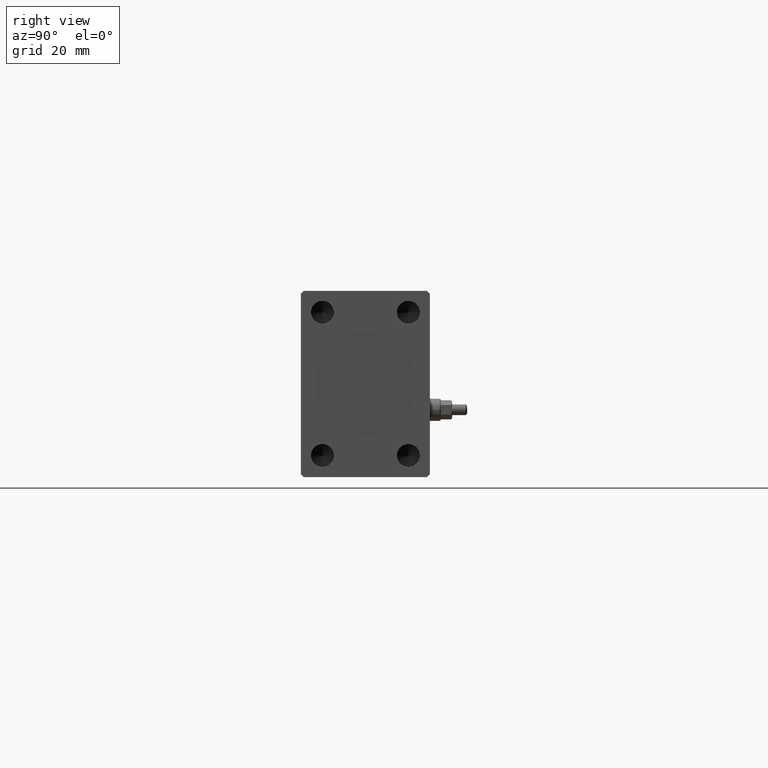
[diagram: clean part render]
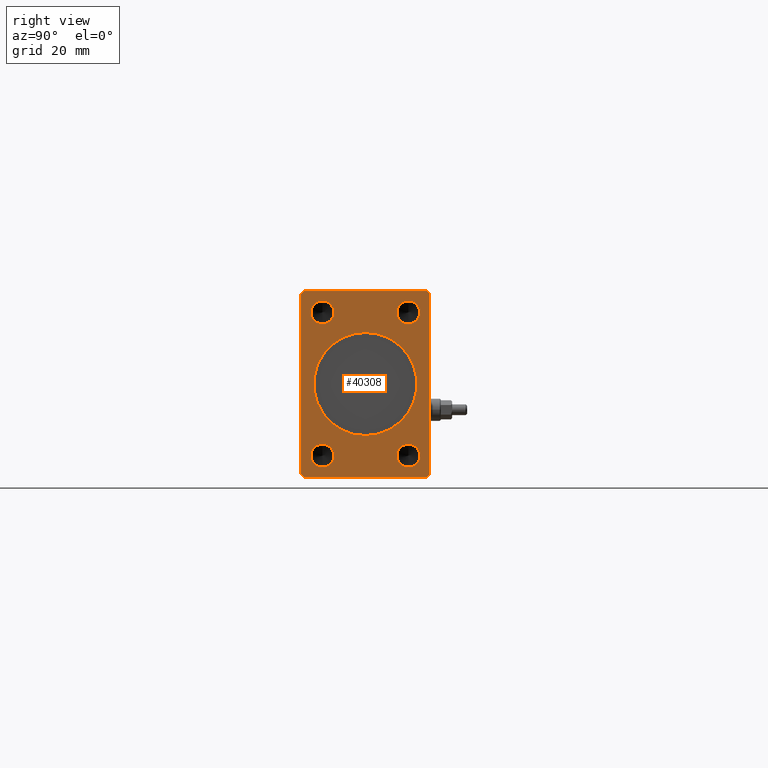
[diagram: same view with one face highlighted and labeled with its STEP entity id]
A machine part, right view. The second image highlights one B-rep face of the part: STEP entity #40308.
In plain terms, the highlighted planar face has unit normal (1, 0, 0).
Its self-contained STEP definition (entity closure, byte-faithful):
#28 = LINE ( 'NONE', #16927, #16991 ) ;
#1206 = CARTESIAN_POINT ( 'NONE',  ( 233.0000000000000000, 15.00000000000000355, -20.99999999999999289 ) ) ;
#1550 = CARTESIAN_POINT ( 'NONE',  ( 233.0000000000000000, -21.50000000000001776, -32.50000000000000711 ) ) ;
#1623 = CARTESIAN_POINT ( 'NONE',  ( 233.0000000000000000, 21.49999999999999645, 32.50000000000000000 ) ) ;
#1626 = CARTESIAN_POINT ( 'NONE',  ( 233.0000000000000000, -21.50000000000001421, 32.50000000000000000 ) ) ;
#1641 = EDGE_CURVE ( 'NONE', #15261, #9431, #38901, .T. ) ;
#2005 = VERTEX_POINT ( 'NONE', #2988 ) ;
#2160 = DIRECTION ( 'NONE',  ( 0.000000000000000000, 0.000000000000000000, -1.000000000000000000 ) ) ;
#2257 = EDGE_CURVE ( 'NONE', #3025, #17758, #5117, .T. ) ;
#2387 = FACE_BOUND ( 'NONE', #38058, .T. ) ;
#2627 = DIRECTION ( 'NONE',  ( 1.000000000000000000, -0.000000000000000000, -0.000000000000000000 ) ) ;
#2932 = ORIENTED_EDGE ( 'NONE', *, *, #25602, .F. ) ;
#2988 = CARTESIAN_POINT ( 'NONE',  ( 233.0000000000000000, -14.99999999999999645, 28.99999999999999645 ) ) ;
#3005 = VECTOR ( 'NONE', #36068, 1000.000000000000000 ) ;
#3025 = VERTEX_POINT ( 'NONE', #8953 ) ;
#3269 = VERTEX_POINT ( 'NONE', #11868 ) ;
#3321 = EDGE_LOOP ( 'NONE', ( #29666, #33351, #33334, #18006, #14334, #45018, #23062, #37845 ) ) ;
#4527 = CARTESIAN_POINT ( 'NONE',  ( 233.0000000000000000, 2.204364238465235428E-15, 18.00000000000000000 ) ) ;
#4909 = DIRECTION ( 'NONE',  ( 1.000000000000000000, -0.000000000000000000, -0.000000000000000000 ) ) ;
#4951 = EDGE_CURVE ( 'NONE', #3269, #29645, #32177, .T. ) ;
#5117 = CIRCLE ( 'NONE', #30674, 4.000000000000000000 ) ;
#5427 = EDGE_CURVE ( 'NONE', #8475, #37578, #30759, .T. ) ;
#5719 = CIRCLE ( 'NONE', #10819, 4.000000000000000000 ) ;
#5837 = DIRECTION ( 'NONE',  ( 0.000000000000000000, 0.000000000000000000, -1.000000000000000000 ) ) ;
#6002 = AXIS2_PLACEMENT_3D ( 'NONE', #20202, #9227, #31153 ) ;
#6252 = EDGE_CURVE ( 'NONE', #16989, #17070, #43915, .T. ) ;
#6715 = EDGE_LOOP ( 'NONE', ( #23156, #2932 ) ) ;
#6917 = EDGE_LOOP ( 'NONE', ( #27243, #33053 ) ) ;
#7856 = EDGE_LOOP ( 'NONE', ( #19400, #31046 ) ) ;
#7930 = DIRECTION ( 'NONE',  ( 0.000000000000000000, 0.000000000000000000, -1.000000000000000000 ) ) ;
#8049 = DIRECTION ( 'NONE',  ( 0.000000000000000000, 0.000000000000000000, -1.000000000000000000 ) ) ;
#8397 = EDGE_CURVE ( 'NONE', #43526, #25767, #44941, .T. ) ;
#8475 = VERTEX_POINT ( 'NONE', #31434 ) ;
#8581 = EDGE_CURVE ( 'NONE', #41480, #13147, #11820, .T. ) ;
#8615 = EDGE_CURVE ( 'NONE', #10043, #17095, #13110, .T. ) ;
#8731 = EDGE_CURVE ( 'NONE', #15546, #2005, #42507, .T. ) ;
#8953 = CARTESIAN_POINT ( 'NONE',  ( 233.0000000000000000, 15.00000000000000355, 29.00000000000000000 ) ) ;
#9227 = DIRECTION ( 'NONE',  ( 1.000000000000000000, -0.000000000000000000, -0.000000000000000000 ) ) ;
#9431 = VERTEX_POINT ( 'NONE', #42855 ) ;
#9455 = FACE_OUTER_BOUND ( 'NONE', #3321, .T. ) ;
#9490 = ORIENTED_EDGE ( 'NONE', *, *, #37399, .F. ) ;
#9532 = CARTESIAN_POINT ( 'NONE',  ( 233.0000000000000000, 15.00000000000000355, -28.99999999999999289 ) ) ;
#9681 = FACE_BOUND ( 'NONE', #6715, .T. ) ;
#10043 = VERTEX_POINT ( 'NONE', #37908 ) ;
#10182 = DIRECTION ( 'NONE',  ( 0.000000000000000000, 0.000000000000000000, 1.000000000000000000 ) ) ;
#10202 = EDGE_CURVE ( 'NONE', #17758, #3025, #26382, .T. ) ;
#10292 = AXIS2_PLACEMENT_3D ( 'NONE', #23197, #37154, #5837 ) ;
#10819 = AXIS2_PLACEMENT_3D ( 'NONE', #39375, #28852, #8049 ) ;
#11109 = VECTOR ( 'NONE', #10182, 1000.000000000000000 ) ;
#11220 = CIRCLE ( 'NONE', #30943, 18.00000000000000000 ) ;
#11444 = CARTESIAN_POINT ( 'NONE',  ( 233.0000000000000000, 22.49999999999999645, -31.50000000000000000 ) ) ;
#11820 = CIRCLE ( 'NONE', #25687, 4.000000000000000000 ) ;
#11868 = CARTESIAN_POINT ( 'NONE',  ( 233.0000000000000000, -21.50000000000001776, -32.50000000000000711 ) ) ;
#11897 = CARTESIAN_POINT ( 'NONE',  ( 233.0000000000000000, 21.49999999999999645, -32.50000000000000000 ) ) ;
#12375 = EDGE_CURVE ( 'NONE', #17070, #16989, #11220, .T. ) ;
#13046 = DIRECTION ( 'NONE',  ( 0.000000000000000000, 0.7071067811865474617, 0.7071067811865474617 ) ) ;
#13110 = LINE ( 'NONE', #37804, #38850 ) ;
#13147 = VERTEX_POINT ( 'NONE', #9532 ) ;
#13338 = FACE_BOUND ( 'NONE', #43746, .T. ) ;
#13353 = DIRECTION ( 'NONE',  ( 0.000000000000000000, -0.7071067811865474617, 0.7071067811865474617 ) ) ;
#13426 = VECTOR ( 'NONE', #13353, 1000.000000000000114 ) ;
#14334 = ORIENTED_EDGE ( 'NONE', *, *, #25948, .T. ) ;
#14636 = LINE ( 'NONE', #38878, #16705 ) ;
#14763 = DIRECTION ( 'NONE',  ( 0.000000000000000000, 0.000000000000000000, -1.000000000000000000 ) ) ;
#14887 = CARTESIAN_POINT ( 'NONE',  ( 233.0000000000000000, 21.49999999999999645, 32.50000000000000000 ) ) ;
#15138 = CARTESIAN_POINT ( 'NONE',  ( 233.0000000000000000, -14.99999999999999645, 20.99999999999999645 ) ) ;
#15261 = VERTEX_POINT ( 'NONE', #1623 ) ;
#15546 = VERTEX_POINT ( 'NONE', #15138 ) ;
#16564 = DIRECTION ( 'NONE',  ( 0.000000000000000000, 0.000000000000000000, -1.000000000000000000 ) ) ;
#16705 = VECTOR ( 'NONE', #38650, 1000.000000000000114 ) ;
#16927 = CARTESIAN_POINT ( 'NONE',  ( 233.0000000000000000, 21.49999999999999645, -32.50000000000000000 ) ) ;
#16989 = VERTEX_POINT ( 'NONE', #30842 ) ;
#16991 = VECTOR ( 'NONE', #13046, 1000.000000000000114 ) ;
#17070 = VERTEX_POINT ( 'NONE', #4527 ) ;
#17095 = VERTEX_POINT ( 'NONE', #41810 ) ;
#17758 = VERTEX_POINT ( 'NONE', #17857 ) ;
#17766 = ORIENTED_EDGE ( 'NONE', *, *, #5427, .F. ) ;
#17857 = CARTESIAN_POINT ( 'NONE',  ( 233.0000000000000000, 15.00000000000000355, 21.00000000000000000 ) ) ;
#18006 = ORIENTED_EDGE ( 'NONE', *, *, #8615, .T. ) ;
#19400 = ORIENTED_EDGE ( 'NONE', *, *, #6252, .F. ) ;
#19689 = DIRECTION ( 'NONE',  ( 1.000000000000000000, -0.000000000000000000, -0.000000000000000000 ) ) ;
#20202 = CARTESIAN_POINT ( 'NONE',  ( 233.0000000000000000, -14.99999999999999645, 24.99999999999999645 ) ) ;
#20334 = CIRCLE ( 'NONE', #43694, 4.000000000000000000 ) ;
#20550 = AXIS2_PLACEMENT_3D ( 'NONE', #25742, #33288, #39695 ) ;
#21824 = CARTESIAN_POINT ( 'NONE',  ( 233.0000000000000000, -14.99999999999999645, -24.99999999999999645 ) ) ;
#21912 = ORIENTED_EDGE ( 'NONE', *, *, #26388, .F. ) ;
#22640 = LINE ( 'NONE', #1626, #23796 ) ;
#22718 = DIRECTION ( 'NONE',  ( 1.000000000000000000, -0.000000000000000000, -0.000000000000000000 ) ) ;
#23062 = ORIENTED_EDGE ( 'NONE', *, *, #42671, .T. ) ;
#23156 = ORIENTED_EDGE ( 'NONE', *, *, #8731, .F. ) ;
#23197 = CARTESIAN_POINT ( 'NONE',  ( 233.0000000000000000, 0.000000000000000000, 0.000000000000000000 ) ) ;
#23352 = CARTESIAN_POINT ( 'NONE',  ( 233.0000000000000000, 22.49999999999999645, 31.50000000000000000 ) ) ;
#23414 = CARTESIAN_POINT ( 'NONE',  ( 233.0000000000000000, -14.99999999999999645, -24.99999999999999645 ) ) ;
#23793 = DIRECTION ( 'NONE',  ( 0.000000000000000000, 0.000000000000000000, -1.000000000000000000 ) ) ;
#23796 = VECTOR ( 'NONE', #29493, 1000.000000000000114 ) ;
#23853 = DIRECTION ( 'NONE',  ( 0.000000000000000000, 0.000000000000000000, -1.000000000000000000 ) ) ;
#24370 = CARTESIAN_POINT ( 'NONE',  ( 233.0000000000000000, 15.00000000000000355, -24.99999999999999289 ) ) ;
#25190 = CIRCLE ( 'NONE', #27385, 4.000000000000000000 ) ;
#25602 = EDGE_CURVE ( 'NONE', #2005, #15546, #5719, .T. ) ;
#25687 = AXIS2_PLACEMENT_3D ( 'NONE', #36445, #22718, #2160 ) ;
#25742 = CARTESIAN_POINT ( 'NONE',  ( 233.0000000000000000, 15.00000000000000355, 25.00000000000000000 ) ) ;
#25767 = VERTEX_POINT ( 'NONE', #23352 ) ;
#25948 = EDGE_CURVE ( 'NONE', #17095, #3269, #14636, .T. ) ;
#26382 = CIRCLE ( 'NONE', #20550, 4.000000000000000000 ) ;
#26388 = EDGE_CURVE ( 'NONE', #13147, #41480, #20334, .T. ) ;
#27243 = ORIENTED_EDGE ( 'NONE', *, *, #10202, .F. ) ;
#27385 = AXIS2_PLACEMENT_3D ( 'NONE', #21824, #4909, #32563 ) ;
#27514 = CARTESIAN_POINT ( 'NONE',  ( 233.0000000000000000, 22.49999999999999645, 31.50000000000000000 ) ) ;
#28852 = DIRECTION ( 'NONE',  ( 1.000000000000000000, -0.000000000000000000, -0.000000000000000000 ) ) ;
#29493 = DIRECTION ( 'NONE',  ( 0.000000000000000000, -0.7071067811865474617, -0.7071067811865474617 ) ) ;
#29645 = VERTEX_POINT ( 'NONE', #11897 ) ;
#29666 = ORIENTED_EDGE ( 'NONE', *, *, #33283, .T. ) ;
#30674 = AXIS2_PLACEMENT_3D ( 'NONE', #30879, #19689, #23793 ) ;
#30711 = DIRECTION ( 'NONE',  ( 0.000000000000000000, 5.507058653894625853E-17, -1.000000000000000000 ) ) ;
#30712 = PLANE ( 'NONE',  #44301 ) ;
#30759 = CIRCLE ( 'NONE', #35135, 4.000000000000000000 ) ;
#30842 = CARTESIAN_POINT ( 'NONE',  ( 233.0000000000000000, 0.000000000000000000, -18.00000000000000000 ) ) ;
#30879 = CARTESIAN_POINT ( 'NONE',  ( 233.0000000000000000, 15.00000000000000355, 25.00000000000000000 ) ) ;
#30943 = AXIS2_PLACEMENT_3D ( 'NONE', #42689, #31951, #7930 ) ;
#31046 = ORIENTED_EDGE ( 'NONE', *, *, #12375, .F. ) ;
#31153 = DIRECTION ( 'NONE',  ( 0.000000000000000000, 0.000000000000000000, -1.000000000000000000 ) ) ;
#31383 = VECTOR ( 'NONE', #39120, 1000.000000000000000 ) ;
#31434 = CARTESIAN_POINT ( 'NONE',  ( 233.0000000000000000, -14.99999999999999645, -28.99999999999999645 ) ) ;
#31458 = DIRECTION ( 'NONE',  ( 1.000000000000000000, -0.000000000000000000, -0.000000000000000000 ) ) ;
#31951 = DIRECTION ( 'NONE',  ( 1.000000000000000000, 0.000000000000000000, 0.000000000000000000 ) ) ;
#32177 = LINE ( 'NONE', #1550, #3005 ) ;
#32563 = DIRECTION ( 'NONE',  ( 0.000000000000000000, 0.000000000000000000, -1.000000000000000000 ) ) ;
#33053 = ORIENTED_EDGE ( 'NONE', *, *, #2257, .F. ) ;
#33283 = EDGE_CURVE ( 'NONE', #25767, #15261, #44676, .T. ) ;
#33288 = DIRECTION ( 'NONE',  ( 1.000000000000000000, -0.000000000000000000, -0.000000000000000000 ) ) ;
#33334 = ORIENTED_EDGE ( 'NONE', *, *, #39568, .T. ) ;
#33351 = ORIENTED_EDGE ( 'NONE', *, *, #1641, .T. ) ;
#33917 = DIRECTION ( 'NONE',  ( 1.000000000000000000, 0.000000000000000000, 0.000000000000000000 ) ) ;
#34244 = ORIENTED_EDGE ( 'NONE', *, *, #8581, .F. ) ;
#35135 = AXIS2_PLACEMENT_3D ( 'NONE', #23414, #2627, #16564 ) ;
#36068 = DIRECTION ( 'NONE',  ( 0.000000000000000000, 1.000000000000000000, 1.613696256722610912E-16 ) ) ;
#36445 = CARTESIAN_POINT ( 'NONE',  ( 233.0000000000000000, 15.00000000000000355, -24.99999999999999289 ) ) ;
#37154 = DIRECTION ( 'NONE',  ( 1.000000000000000000, 0.000000000000000000, 0.000000000000000000 ) ) ;
#37399 = EDGE_CURVE ( 'NONE', #37578, #8475, #25190, .T. ) ;
#37578 = VERTEX_POINT ( 'NONE', #44448 ) ;
#37581 = CARTESIAN_POINT ( 'NONE',  ( 233.0000000000000000, 0.000000000000000000, 0.000000000000000000 ) ) ;
#37804 = CARTESIAN_POINT ( 'NONE',  ( 233.0000000000000000, -22.50000000000001776, 31.50000000000000000 ) ) ;
#37845 = ORIENTED_EDGE ( 'NONE', *, *, #8397, .T. ) ;
#37908 = CARTESIAN_POINT ( 'NONE',  ( 233.0000000000000000, -22.50000000000001776, 31.50000000000000000 ) ) ;
#38058 = EDGE_LOOP ( 'NONE', ( #17766, #9490 ) ) ;
#38650 = DIRECTION ( 'NONE',  ( 0.000000000000000000, 0.7071067811865451302, -0.7071067811865500152 ) ) ;
#38850 = VECTOR ( 'NONE', #30711, 1000.000000000000000 ) ;
#38878 = CARTESIAN_POINT ( 'NONE',  ( 233.0000000000000000, -22.50000000000001421, -31.50000000000000711 ) ) ;
#38901 = LINE ( 'NONE', #14887, #31383 ) ;
#39120 = DIRECTION ( 'NONE',  ( 0.000000000000000000, -1.000000000000000000, 0.000000000000000000 ) ) ;
#39375 = CARTESIAN_POINT ( 'NONE',  ( 233.0000000000000000, -14.99999999999999645, 24.99999999999999645 ) ) ;
#39568 = EDGE_CURVE ( 'NONE', #9431, #10043, #22640, .T. ) ;
#39695 = DIRECTION ( 'NONE',  ( 0.000000000000000000, 0.000000000000000000, -1.000000000000000000 ) ) ;
#40308 = ADVANCED_FACE ( 'NONE', ( #43762, #40556, #2387, #13338, #9681, #9455 ), #30712, .T. ) ;
#40556 = FACE_BOUND ( 'NONE', #6917, .T. ) ;
#41480 = VERTEX_POINT ( 'NONE', #1206 ) ;
#41810 = CARTESIAN_POINT ( 'NONE',  ( 233.0000000000000000, -22.50000000000001421, -31.50000000000000711 ) ) ;
#42507 = CIRCLE ( 'NONE', #6002, 4.000000000000000000 ) ;
#42671 = EDGE_CURVE ( 'NONE', #29645, #43526, #28, .T. ) ;
#42689 = CARTESIAN_POINT ( 'NONE',  ( 233.0000000000000000, 0.000000000000000000, 0.000000000000000000 ) ) ;
#42855 = CARTESIAN_POINT ( 'NONE',  ( 233.0000000000000000, -21.50000000000001421, 32.50000000000000000 ) ) ;
#43526 = VERTEX_POINT ( 'NONE', #11444 ) ;
#43694 = AXIS2_PLACEMENT_3D ( 'NONE', #24370, #31458, #14763 ) ;
#43746 = EDGE_LOOP ( 'NONE', ( #21912, #34244 ) ) ;
#43762 = FACE_BOUND ( 'NONE', #7856, .T. ) ;
#43915 = CIRCLE ( 'NONE', #10292, 18.00000000000000000 ) ;
#44263 = CARTESIAN_POINT ( 'NONE',  ( 233.0000000000000000, 22.49999999999999645, -31.50000000000000000 ) ) ;
#44301 = AXIS2_PLACEMENT_3D ( 'NONE', #37581, #33917, #23853 ) ;
#44448 = CARTESIAN_POINT ( 'NONE',  ( 233.0000000000000000, -14.99999999999999645, -20.99999999999999645 ) ) ;
#44676 = LINE ( 'NONE', #27514, #13426 ) ;
#44941 = LINE ( 'NONE', #44263, #11109 ) ;
#45018 = ORIENTED_EDGE ( 'NONE', *, *, #4951, .T. ) ;